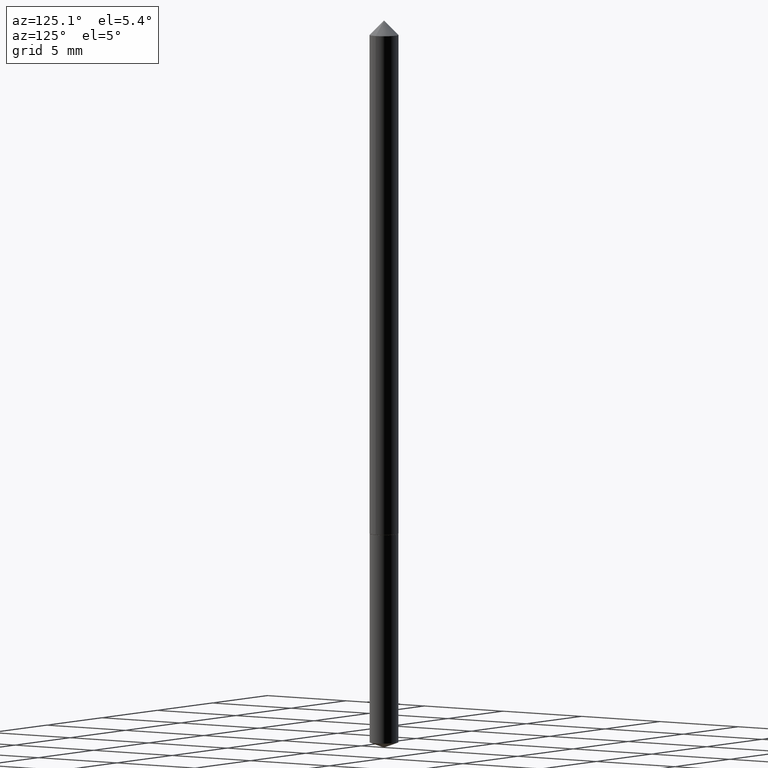
[diagram: clean part render]
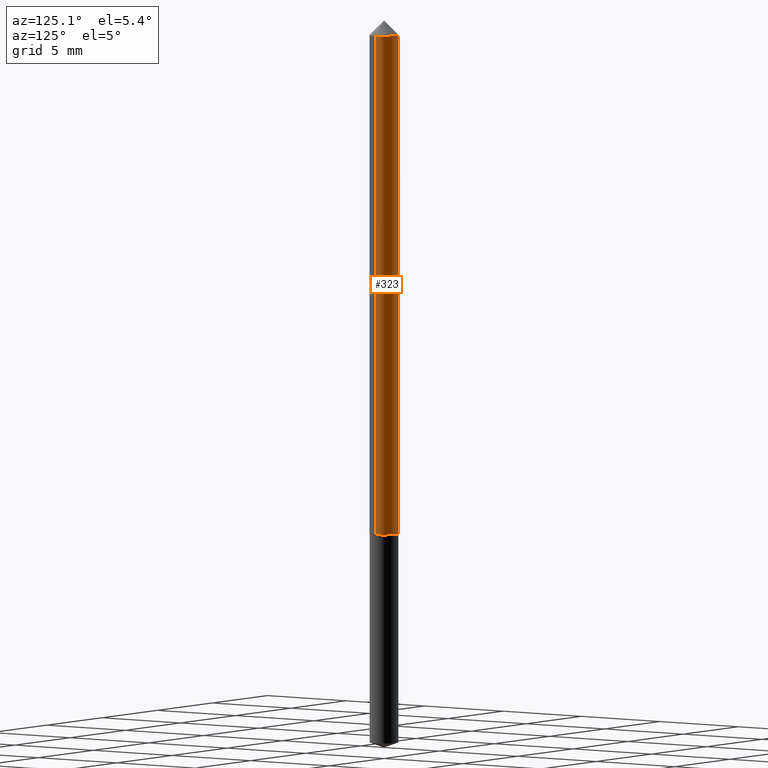
[diagram: same view with one face highlighted and labeled with its STEP entity id]
A machine part, auxiliary view. The second image highlights one B-rep face of the part: STEP entity #323.
In plain terms, the highlighted cylindrical surface (edge-blend (fillet) strip) has radius 0.7557 mm, axis along (-0, 0, 1).
Its self-contained STEP definition (entity closure, byte-faithful):
#6 = DIRECTION ( 'NONE',  ( 1.000000000000000000, -6.982962677686266711E-15, 4.876176775795935232E-29 ) ) ;
#11 = VERTEX_POINT ( 'NONE', #355 ) ;
#39 = ORIENTED_EDGE ( 'NONE', *, *, #363, .F. ) ;
#40 = DIRECTION ( 'NONE',  ( -2.445468806185136597E-29, 3.491481338843145583E-15, 1.000000000000000000 ) ) ;
#58 = CARTESIAN_POINT ( 'NONE',  ( 0.02975000000000000214, -3.168519315000154702E-16, -0.03125000000000020817 ) ) ;
#63 = FACE_OUTER_BOUND ( 'NONE', #153, .T. ) ;
#66 = CIRCLE ( 'NONE', #212, 0.02975000000000000214 ) ;
#88 = EDGE_CURVE ( 'NONE', #11, #96, #356, .T. ) ;
#91 = CARTESIAN_POINT ( 'NONE',  ( 7.642090019328602662E-31, -1.091087918388490267E-16, -0.03125000000000020817 ) ) ;
#96 = VERTEX_POINT ( 'NONE', #101 ) ;
#99 = ORIENTED_EDGE ( 'NONE', *, *, #88, .T. ) ;
#101 = CARTESIAN_POINT ( 'NONE',  ( -0.02975000000000012704, -3.486092273946260702E-15, -1.059000000000000163 ) ) ;
#139 = CARTESIAN_POINT ( 'NONE',  ( -0.02975000000000000214, -1.691907300948238426E-15, -0.03125000000000020817 ) ) ;
#153 = EDGE_LOOP ( 'NONE', ( #99, #214, #39, #298 ) ) ;
#163 = DIRECTION ( 'NONE',  ( -2.445468806185136597E-29, 3.491481338843145583E-15, 1.000000000000000000 ) ) ;
#172 = LINE ( 'NONE', #285, #191 ) ;
#181 = CARTESIAN_POINT ( 'NONE',  ( 0.000000000000000000, 0.000000000000000000, 0.000000000000000000 ) ) ;
#191 = VECTOR ( 'NONE', #304, 39.37007874015748143 ) ;
#200 = CARTESIAN_POINT ( 'NONE',  ( -0.02975000000000006459, 2.113864638886302642E-16, -1.463383189350837589E-30 ) ) ;
#207 = AXIS2_PLACEMENT_3D ( 'NONE', #324, #163, #281 ) ;
#212 = AXIS2_PLACEMENT_3D ( 'NONE', #91, #346, #213 ) ;
#213 = DIRECTION ( 'NONE',  ( 1.000000000000000000, -6.982962677686267499E-15, 0.000000000000000000 ) ) ;
#214 = ORIENTED_EDGE ( 'NONE', *, *, #302, .T. ) ;
#217 = EDGE_CURVE ( 'NONE', #11, #348, #172, .T. ) ;
#245 = VERTEX_POINT ( 'NONE', #139 ) ;
#251 = AXIS2_PLACEMENT_3D ( 'NONE', #181, #40, #6 ) ;
#269 = CYLINDRICAL_SURFACE ( 'NONE', #251, 0.02975000000000006459 ) ;
#281 = DIRECTION ( 'NONE',  ( 1.000000000000000000, -6.982962677686261977E-15, 0.000000000000000000 ) ) ;
#285 = CARTESIAN_POINT ( 'NONE',  ( 0.02975000000000006459, -2.077431396611668872E-16, 1.450662590799293904E-30 ) ) ;
#298 = ORIENTED_EDGE ( 'NONE', *, *, #217, .F. ) ;
#302 = EDGE_CURVE ( 'NONE', #96, #245, #331, .T. ) ;
#304 = DIRECTION ( 'NONE',  ( -2.445468806185136877E-29, 3.491481338843145188E-15, 1.000000000000000000 ) ) ;
#305 = DIRECTION ( 'NONE',  ( -2.445468806185136877E-29, 3.491481338843145188E-15, 1.000000000000000000 ) ) ;
#323 = ADVANCED_FACE ( 'NONE', ( #63 ), #269, .T. ) ;
#324 = CARTESIAN_POINT ( 'NONE',  ( 2.589751465750059705E-29, -3.697478737834891287E-15, -1.059000000000000163 ) ) ;
#327 = VECTOR ( 'NONE', #305, 39.37007874015748143 ) ;
#331 = LINE ( 'NONE', #200, #327 ) ;
#346 = DIRECTION ( 'NONE',  ( -2.445468806185136597E-29, 3.491481338843145583E-15, 1.000000000000000000 ) ) ;
#348 = VERTEX_POINT ( 'NONE', #58 ) ;
#355 = CARTESIAN_POINT ( 'NONE',  ( 0.02975000000000012704, -3.905221877496058889E-15, -1.059000000000000163 ) ) ;
#356 = CIRCLE ( 'NONE', #207, 0.02975000000000012704 ) ;
#363 = EDGE_CURVE ( 'NONE', #348, #245, #66, .T. ) ;